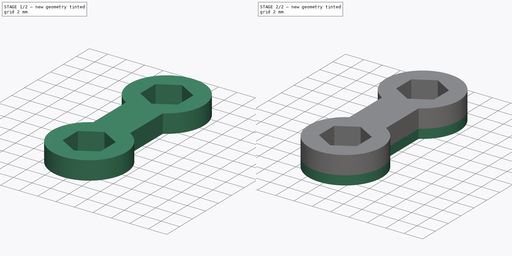
[diagram: build sequence overview — one tinted view per stage of 2, left to right]
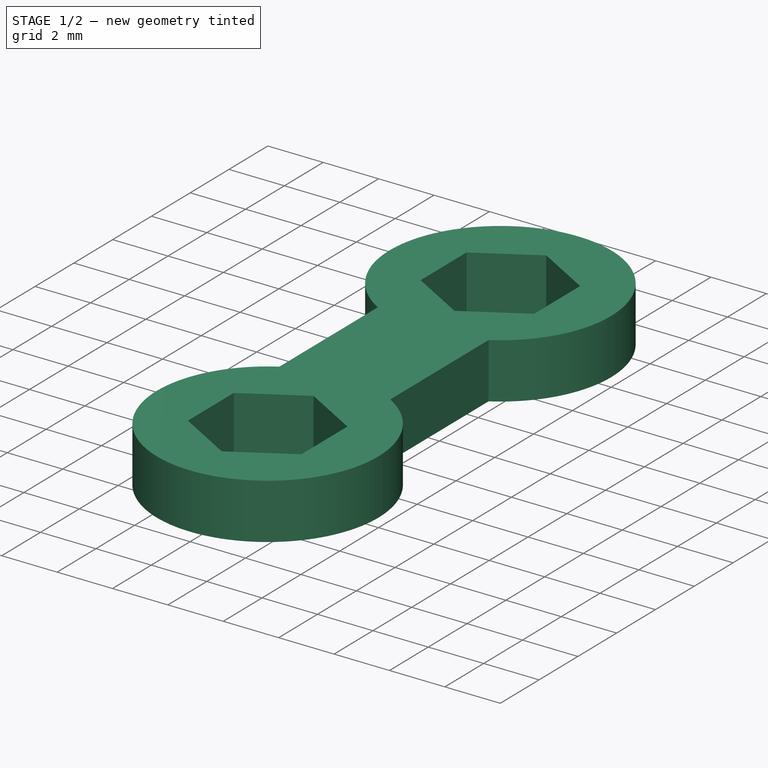
[diagram: stage 1 of 2 — iso view after this stage's code; geometry added in this stage tinted green]
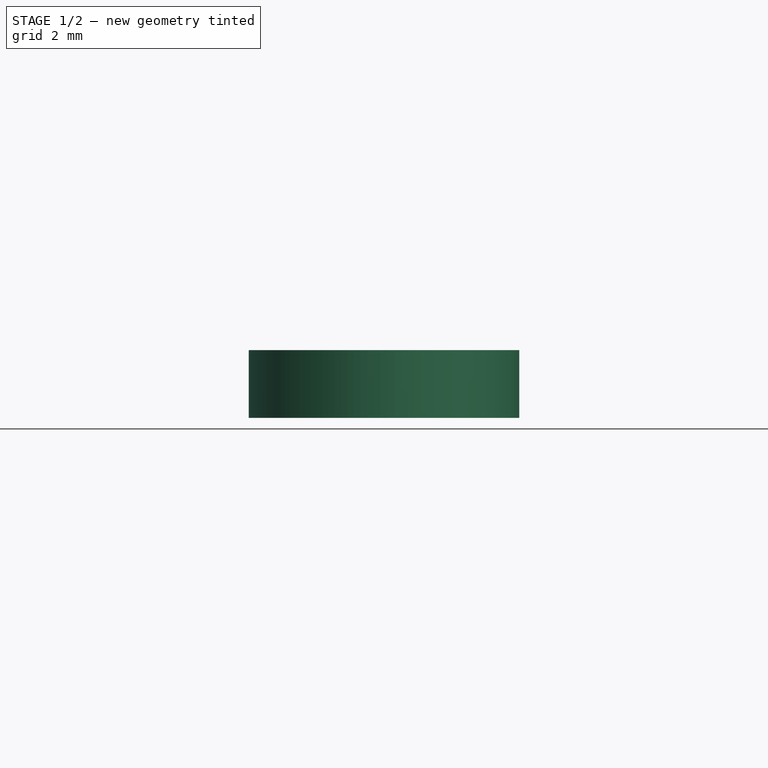
[diagram: stage 1 of 2 — front view after this stage's code; geometry added in this stage tinted green]
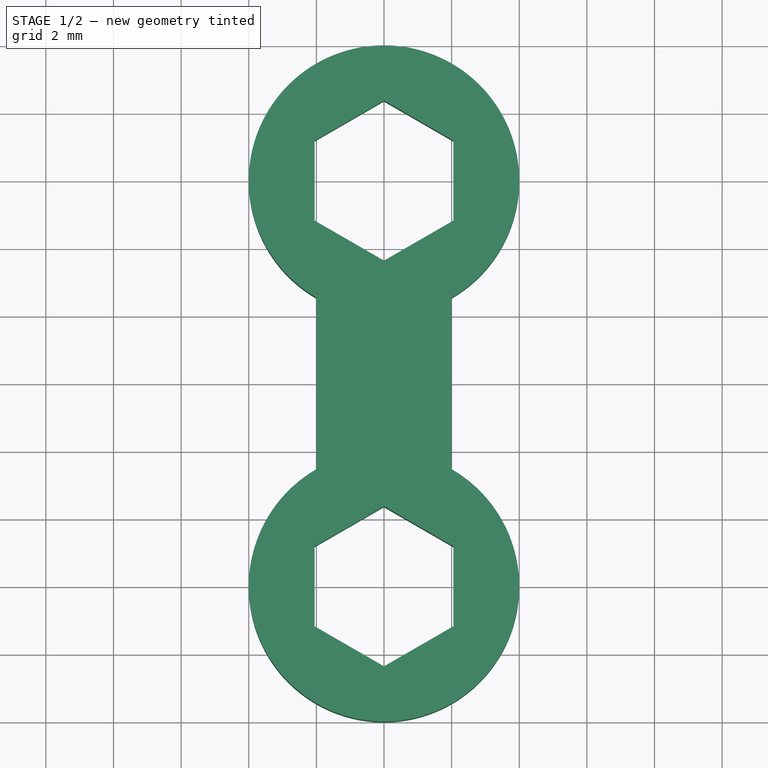
[diagram: stage 1 of 2 — top view after this stage's code; geometry added in this stage tinted green]
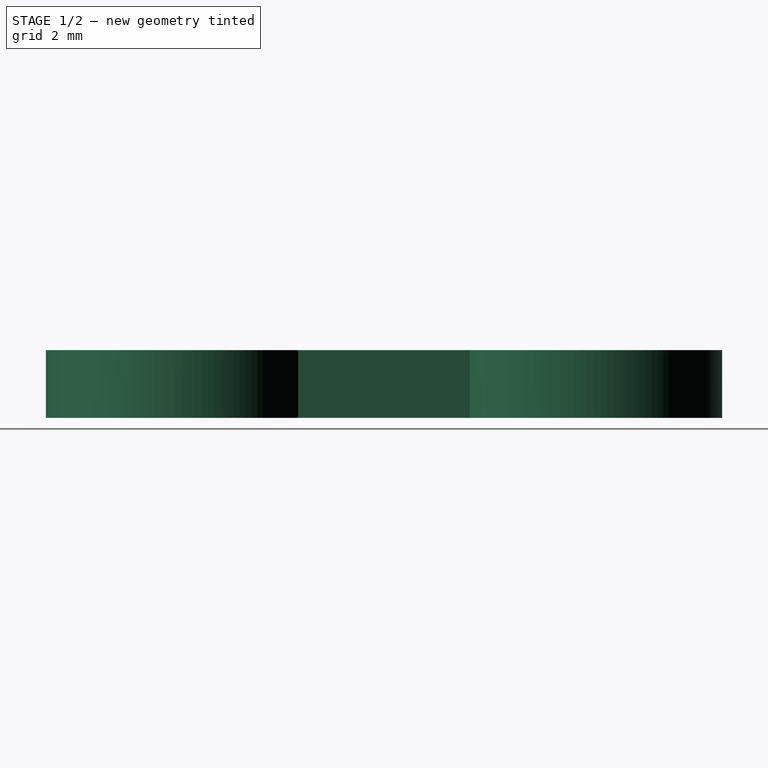
[diagram: stage 1 of 2 — right view after this stage's code; geometry added in this stage tinted green]
FCSTD DOCUMENT  (FreeCAD 0.19R24276 (Git))
Label: Key_M2_V1
License: All rights reserved
LicenseURL: http://en.wikipedia.org/wiki/All_rights_reserved
objects: Sketcher::SketchObject×3, PartDesign::Pad×2, PartDesign::Pocket×1, PartDesign::Body×1
note: 10 computed .brp shape members not serialized (recipe doc carries the construction recipe); baked Part::Feature solids carry a one-line shape summary decoded from their .brp

FEATURE [Sketcher::SketchObject] Sketch
  FullyConstrained = false
  MapMode = 5
  Support = -> [XY_Plane]
  sketch-geometry (21):
    g0: LineSegment StartX=0 StartY=2.36714 StartZ=0 EndX=-2.05 EndY=1.18357 EndZ=0
    g1: LineSegment StartX=-2.05 StartY=1.18357 StartZ=0 EndX=-2.05 EndY=-1.18357 EndZ=0
    g2: LineSegment StartX=-2.05 StartY=-1.18357 StartZ=0 EndX=-4e-16 EndY=-2.36714 EndZ=0
    g3: LineSegment StartX=-4e-16 StartY=-2.36714 StartZ=0 EndX=2.05 EndY=-1.18357 EndZ=0
    g4: LineSegment StartX=2.05 StartY=-1.18357 StartZ=0 EndX=2.05 EndY=1.18357 EndZ=0
    g5: LineSegment StartX=2.05 StartY=1.18357 StartZ=0 EndX=0 EndY=2.36714 EndZ=0
    g6: Circle CenterX=0 CenterY=0 CenterZ=0 NormalX=0 NormalY=0 NormalZ=1 AngleXU=0 Radius=2.36714
    g7: ArcOfCircle CenterX=0 CenterY=0 CenterZ=0 NormalX=0 NormalY=0 NormalZ=1 AngleXU=0 Radius=4 StartAngle=5.23599 EndAngle=10.472
    g8: LineSegment StartX=2 StartY=-3.4641 StartZ=0 EndX=2 EndY=-6 EndZ=0
    g9: LineSegment StartX=-2 StartY=-6 StartZ=0 EndX=-2 EndY=-3.4641 EndZ=0
    g10: LineSegment StartX=-13.0265 StartY=-6 StartZ=0 EndX=22.2324 EndY=-6 EndZ=0
    g11: LineSegment StartX=3.6e-15 StartY=-14.3671 StartZ=0 EndX=-2.05 EndY=-13.1836 EndZ=0
    g12: LineSegment StartX=-2.05 StartY=-13.1836 StartZ=0 EndX=-2.05 EndY=-10.8164 EndZ=0
    g13: LineSegment StartX=-2.05 StartY=-10.8164 StartZ=0 EndX=4e-15 EndY=-9.63286 EndZ=0
    g14: LineSegment StartX=4e-15 StartY=-9.63286 StartZ=0 EndX=2.05 EndY=-10.8164 EndZ=0
    g15: LineSegment StartX=2.05 StartY=-10.8164 StartZ=0 EndX=2.05 EndY=-13.1836 EndZ=0
    g16: LineSegment StartX=2.05 StartY=-13.1836 StartZ=0 EndX=3.6e-15 EndY=-14.3671 EndZ=0
    g17: Circle CenterX=3.6e-15 CenterY=-12 CenterZ=0 NormalX=0 NormalY=0 NormalZ=1 AngleXU=0 Radius=2.36714
    g18: ArcOfCircle CenterX=3.6e-15 CenterY=-12 CenterZ=0 NormalX=0 NormalY=0 NormalZ=1 AngleXU=0 Radius=4 StartAngle=2.0944 EndAngle=7.33038
    g19: LineSegment StartX=2 StartY=-8.5359 StartZ=0 EndX=2 EndY=-6 EndZ=0
    g20: LineSegment StartX=-2 StartY=-6 StartZ=0 EndX=-2 EndY=-8.5359 EndZ=0
  constraints (46):
    c: Coincident(g0,g1)
    c: Coincident(g1,g2)
    c: Coincident(g2,g3)
    c: Coincident(g3,g4)
    c: Coincident(g4,g5)
    c: Coincident(g5,g0)
    c: Equal(g0, g1-g5) x5
    c: PointOnObject(g0,g6)
    c: PointOnObject(g1,g6)
    c: PointOnObject(g2,g6)
    c: PointOnObject(g3,g6)
    c: PointOnObject(g4,g6)
    c: PointOnObject(g5,g6)
    c: Coincident(g6,g-1)
    c: PointOnObject(g5,g-2)
    c: DistanceX(g1,g3) = 4.1
    c: Coincident(g7,g-1)
    c: Diameter(g7) = 8
    c: Vertical(g8)
    c: Vertical(g9)
    c: Coincident(g7,g8)
    c: Coincident(g7,g9)
    c: DistanceX(g7,g7) = 2
    c: Horizontal(g10)
    c: PointOnObject(g8,g10)
    c: PointOnObject(g9,g10)
    c: DistanceX(g9,g8) = 4
    c: DistanceY(g9,g7) = 6
    c: Coincident(g11,g12)
    c: Coincident(g12,g13)
    c: Coincident(g13,g14)
    c: Coincident(g14,g15)
    c: Coincident(g15,g16)
    c: Coincident(g16,g11)
    c: Equal(g11, g12-g16) x5
    c: PointOnObject(g11,g17)
    c: PointOnObject(g12,g17)
    c: PointOnObject(g13,g17)
    c: PointOnObject(g14,g17)
    c: PointOnObject(g15,g17)
    c: PointOnObject(g16,g17)
    c: Diameter(g18) = 8
    c: Vertical(g19)
    c: Vertical(g20)
    c: Coincident(g18,g19)
    c: Coincident(g18,g20)
FEATURE [PartDesign::Pad] Pad
  Direction = (1,1,1)
  Length = 2
  Length2 = 100
  Profile = -> Sketch
  Type = 0
FEATURE [Sketcher::SketchObject] Sketch002
  FullyConstrained = true
  MapMode = 5
  Placement = pos=(6.22115,-10.7754,0) rot=(-0.186157,0.694747,0.694747;3.50969rad)
  sketch-geometry (1):
    g0: Circle CenterX=0 CenterY=0 CenterZ=0 NormalX=0 NormalY=0 NormalZ=1 AngleXU=0 Radius=1.3
  constraints (2):
    c: Coincident(g0,g-1)
    c: Diameter(g0) = 2.6
FEATURE [PartDesign::Pocket] Pocket
  BaseFeature = -> Pad
  Length = 5
  Length2 = 100
  Profile = -> Sketch002
  Type = 1
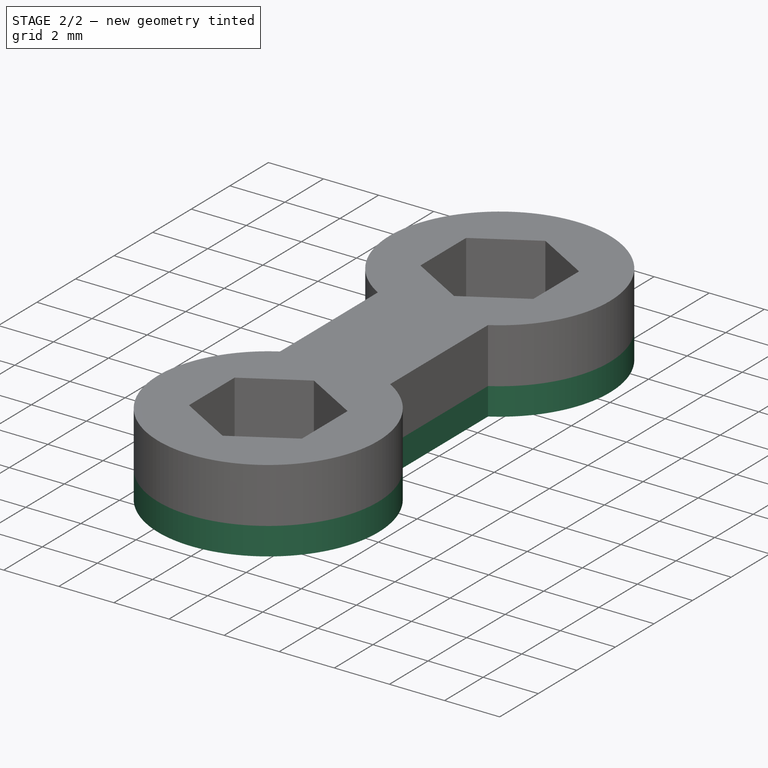
[diagram: stage 2 of 2 — iso view after this stage's code; geometry added in this stage tinted green]
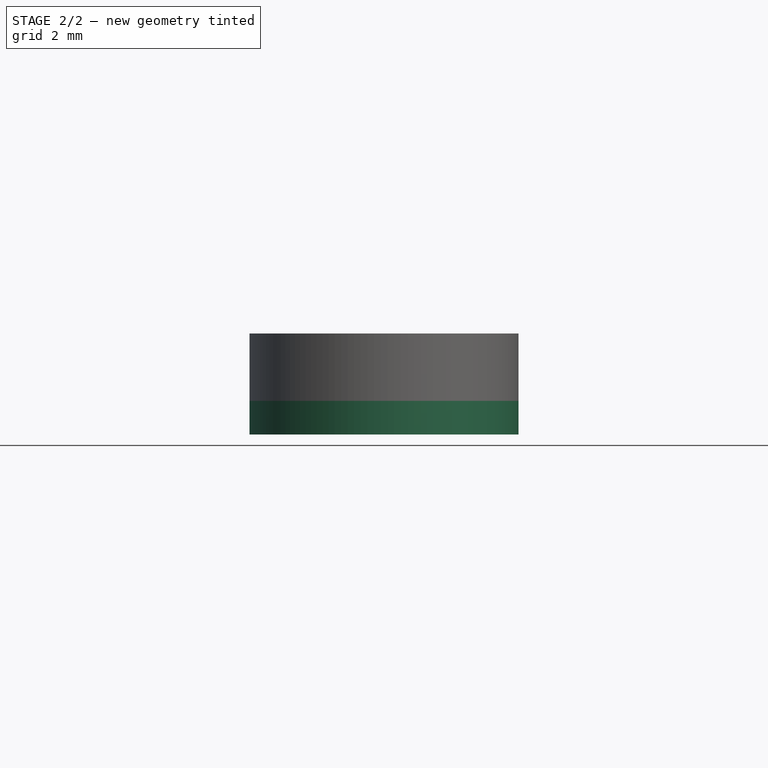
[diagram: stage 2 of 2 — front view after this stage's code; geometry added in this stage tinted green]
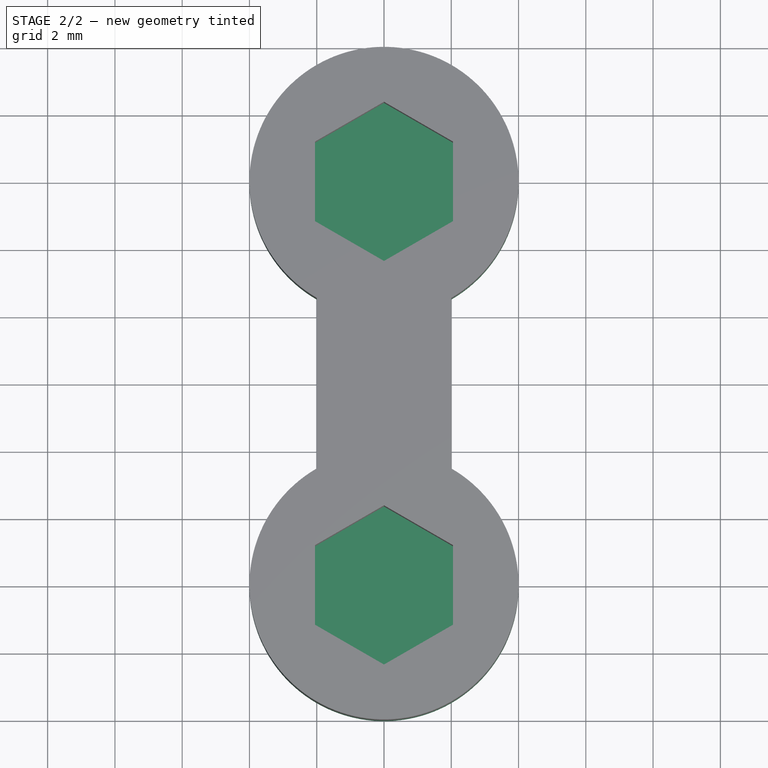
[diagram: stage 2 of 2 — top view after this stage's code; geometry added in this stage tinted green]
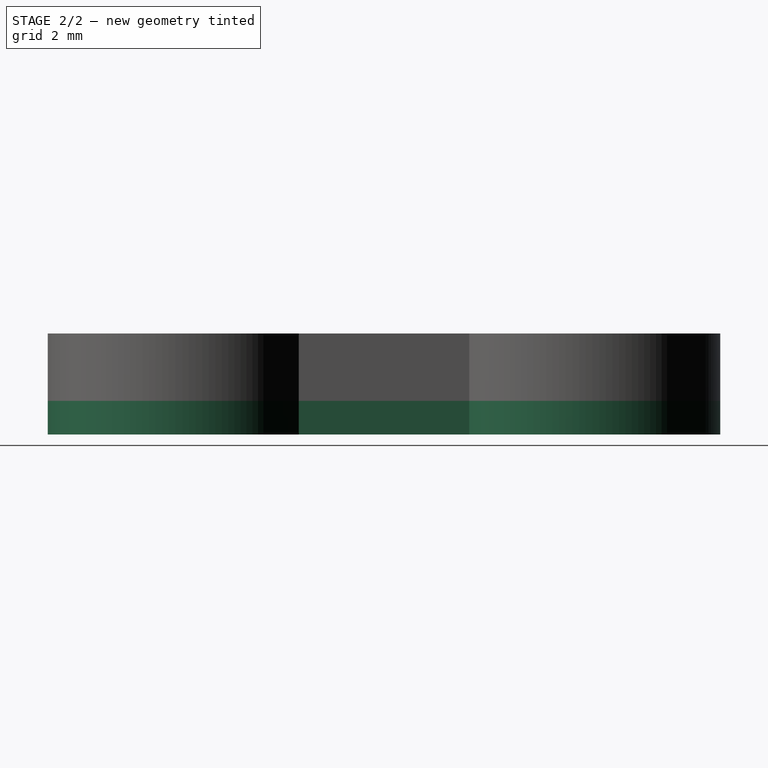
[diagram: stage 2 of 2 — right view after this stage's code; geometry added in this stage tinted green]
FEATURE [Sketcher::SketchObject] Sketch003
  FullyConstrained = false
  MapMode = 5
  sketch-geometry (21):
    g0: LineSegment StartX=0 StartY=2.36714 StartZ=0 EndX=-2.05 EndY=1.18357 EndZ=0
    g1: LineSegment StartX=-2.05 StartY=1.18357 StartZ=0 EndX=-2.05 EndY=-1.18357 EndZ=0
    g2: LineSegment StartX=-2.05 StartY=-1.18357 StartZ=0 EndX=-4e-16 EndY=-2.36714 EndZ=0
    g3: LineSegment StartX=-4e-16 StartY=-2.36714 StartZ=0 EndX=2.05 EndY=-1.18357 EndZ=0
    g4: LineSegment StartX=2.05 StartY=-1.18357 StartZ=0 EndX=2.05 EndY=1.18357 EndZ=0
    g5: LineSegment StartX=2.05 StartY=1.18357 StartZ=0 EndX=0 EndY=2.36714 EndZ=0
    g6: Circle CenterX=0 CenterY=0 CenterZ=0 NormalX=0 NormalY=0 NormalZ=1 AngleXU=0 Radius=2.36714
    g7: ArcOfCircle CenterX=0 CenterY=0 CenterZ=0 NormalX=0 NormalY=0 NormalZ=1 AngleXU=0 Radius=4 StartAngle=5.23599 EndAngle=10.472
    g8: LineSegment StartX=2 StartY=-3.4641 StartZ=0 EndX=2 EndY=-6 EndZ=0
    g9: LineSegment StartX=-2 StartY=-6 StartZ=0 EndX=-2 EndY=-3.4641 EndZ=0
    g10: LineSegment StartX=-13.0265 StartY=-6 StartZ=0 EndX=22.2324 EndY=-6 EndZ=0
    g11: LineSegment StartX=3.6e-15 StartY=-14.3671 StartZ=0 EndX=-2.05 EndY=-13.1836 EndZ=0
    g12: LineSegment StartX=-2.05 StartY=-13.1836 StartZ=0 EndX=-2.05 EndY=-10.8164 EndZ=0
    g13: LineSegment StartX=-2.05 StartY=-10.8164 StartZ=0 EndX=4e-15 EndY=-9.63286 EndZ=0
    g14: LineSegment StartX=4e-15 StartY=-9.63286 StartZ=0 EndX=2.05 EndY=-10.8164 EndZ=0
    g15: LineSegment StartX=2.05 StartY=-10.8164 StartZ=0 EndX=2.05 EndY=-13.1836 EndZ=0
    g16: LineSegment StartX=2.05 StartY=-13.1836 StartZ=0 EndX=3.6e-15 EndY=-14.3671 EndZ=0
    g17: Circle CenterX=3.6e-15 CenterY=-12 CenterZ=0 NormalX=0 NormalY=0 NormalZ=1 AngleXU=0 Radius=2.36714
    g18: ArcOfCircle CenterX=3.6e-15 CenterY=-12 CenterZ=0 NormalX=0 NormalY=0 NormalZ=1 AngleXU=0 Radius=4 StartAngle=2.0944 EndAngle=7.33038
    g19: LineSegment StartX=2 StartY=-8.5359 StartZ=0 EndX=2 EndY=-6 EndZ=0
    g20: LineSegment StartX=-2 StartY=-6 StartZ=0 EndX=-2 EndY=-8.5359 EndZ=0
  constraints (46):
    c: Coincident(g0,g1)
    c: Coincident(g1,g2)
    c: Coincident(g2,g3)
    c: Coincident(g3,g4)
    c: Coincident(g4,g5)
    c: Coincident(g5,g0)
    c: Equal(g0, g1-g5) x5
    c: PointOnObject(g0,g6)
    c: PointOnObject(g1,g6)
    c: PointOnObject(g2,g6)
    c: PointOnObject(g3,g6)
    c: PointOnObject(g4,g6)
    c: PointOnObject(g5,g6)
    c: Coincident(g6,g-1)
    c: PointOnObject(g5,g-2)
    c: DistanceX(g1,g3) = 4.1
    c: Coincident(g7,g-1)
    c: Diameter(g7) = 8
    c: Vertical(g8)
    c: Vertical(g9)
    c: Coincident(g7,g8)
    c: Coincident(g7,g9)
    c: DistanceX(g7,g7) = 2
    c: Horizontal(g10)
    c: PointOnObject(g8,g10)
    c: PointOnObject(g9,g10)
    c: DistanceX(g9,g8) = 4
    c: DistanceY(g9,g7) = 6
    c: Coincident(g11,g12)
    c: Coincident(g12,g13)
    c: Coincident(g13,g14)
    c: Coincident(g14,g15)
    c: Coincident(g15,g16)
    c: Coincident(g16,g11)
    c: Equal(g11, g12-g16) x5
    c: PointOnObject(g11,g17)
    c: PointOnObject(g12,g17)
    c: PointOnObject(g13,g17)
    c: PointOnObject(g14,g17)
    c: PointOnObject(g15,g17)
    c: PointOnObject(g16,g17)
    c: Diameter(g18) = 8
    c: Vertical(g19)
    c: Vertical(g20)
    c: Coincident(g18,g19)
    c: Coincident(g18,g20)
FEATURE [PartDesign::Pad] Pad001
  BaseFeature = -> Pocket
  Direction = (1,1,1)
  Length = 1
  Length2 = 100
  Profile = -> Sketch003
  Reversed = true
  Type = 0
FEATURE [PartDesign::Body] Body
  Group = -> [Sketch,Pad,Sketch002,Pocket,Sketch003,Pad001]
  Origin = -> Origin
  Tip = -> Pad001
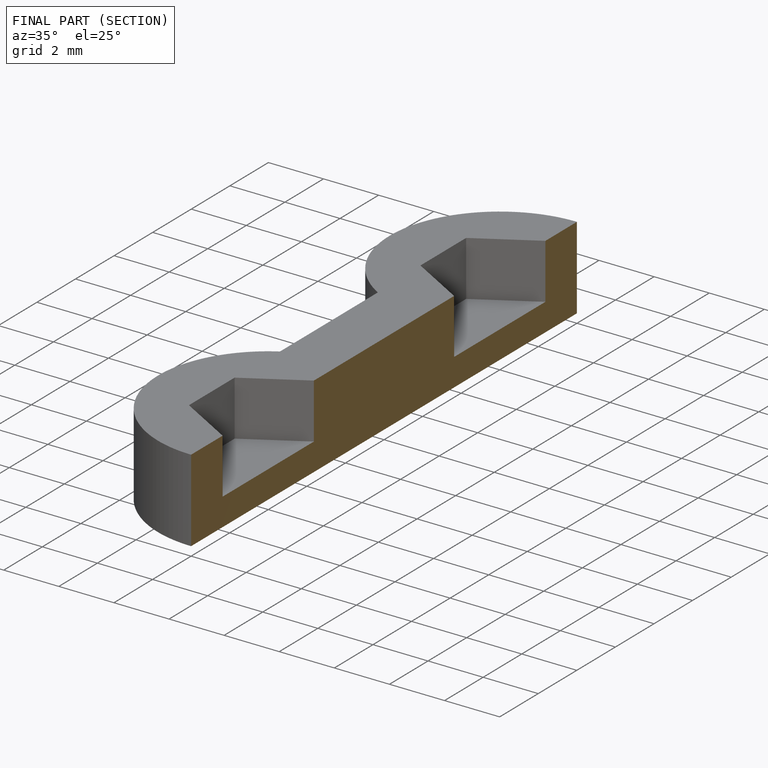
[diagram: finished part — half-section view (interior)]
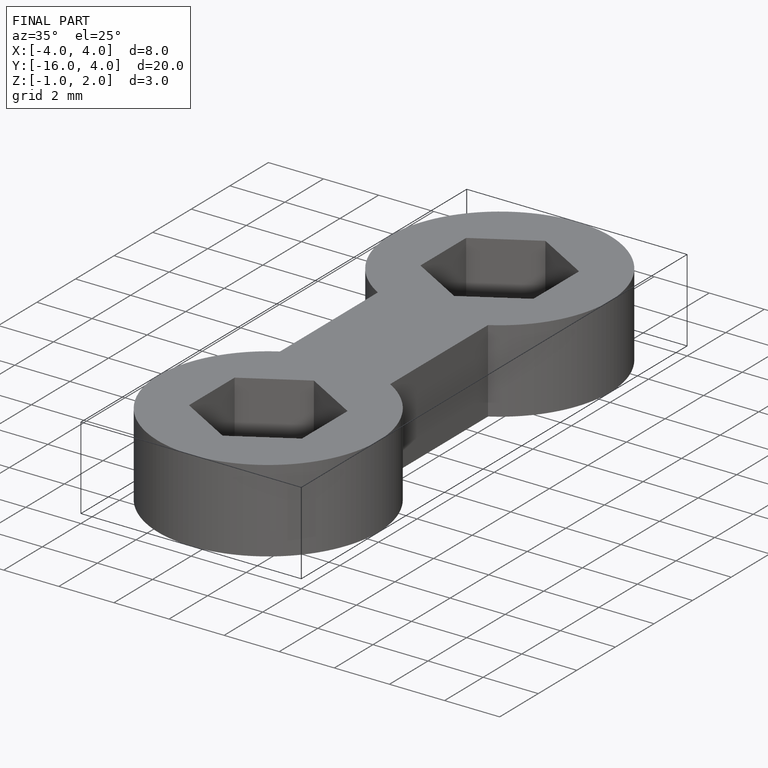
[diagram: finished part — iso view with bounding-box wireframe]
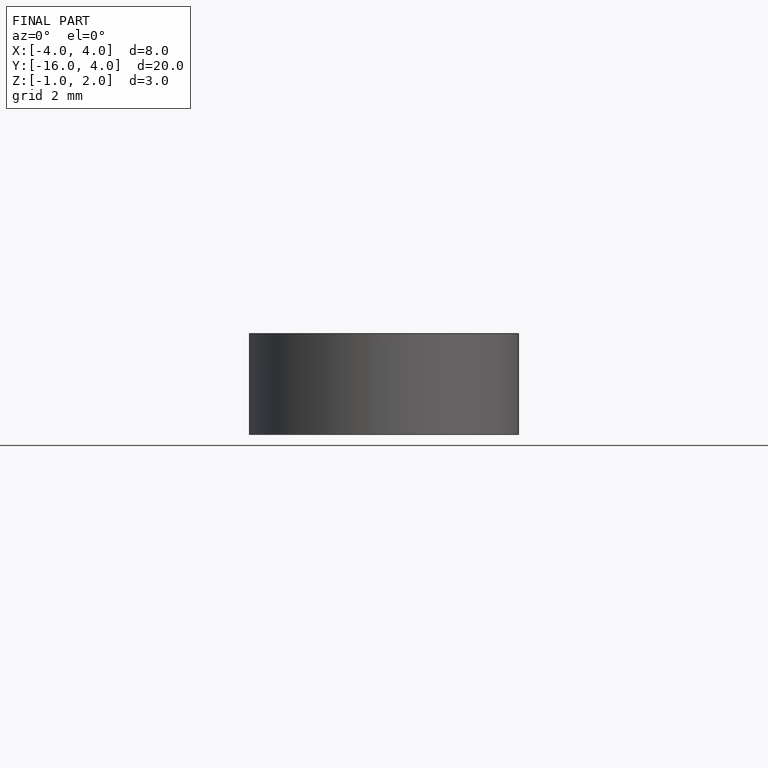
[diagram: finished part — front view with bounding-box wireframe]
